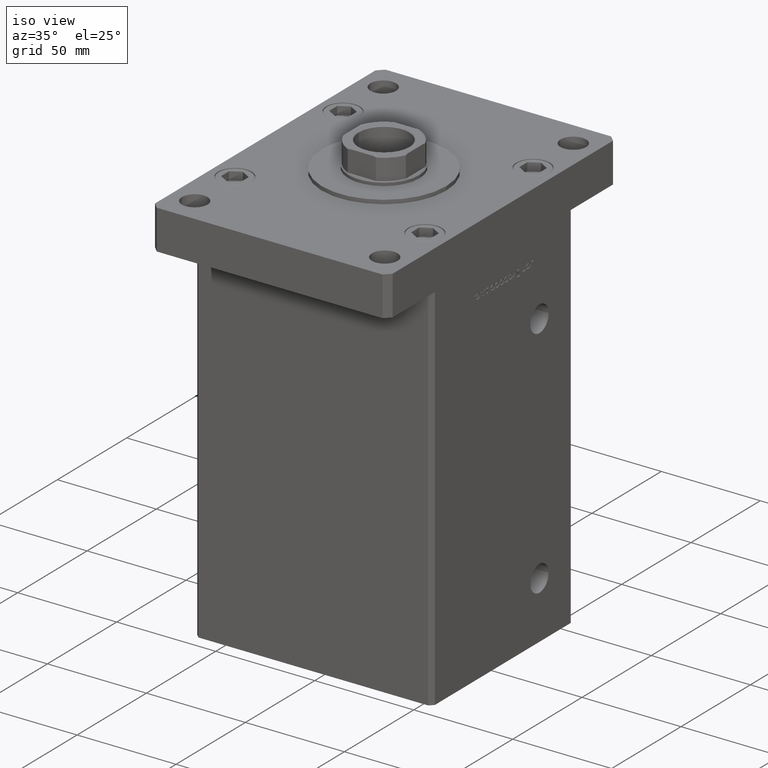
[diagram: clean part render]
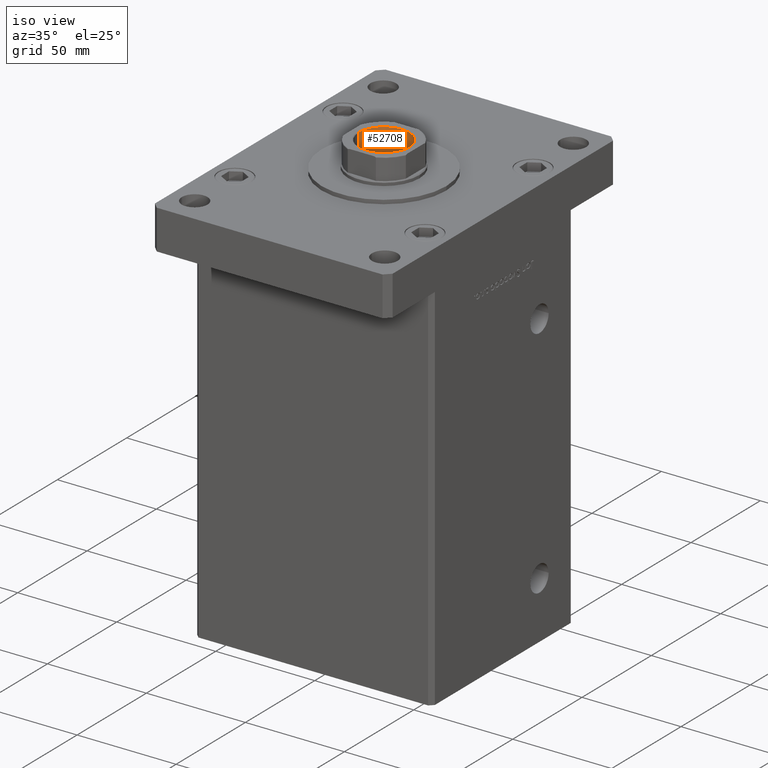
[diagram: same view with one face highlighted and labeled with its STEP entity id]
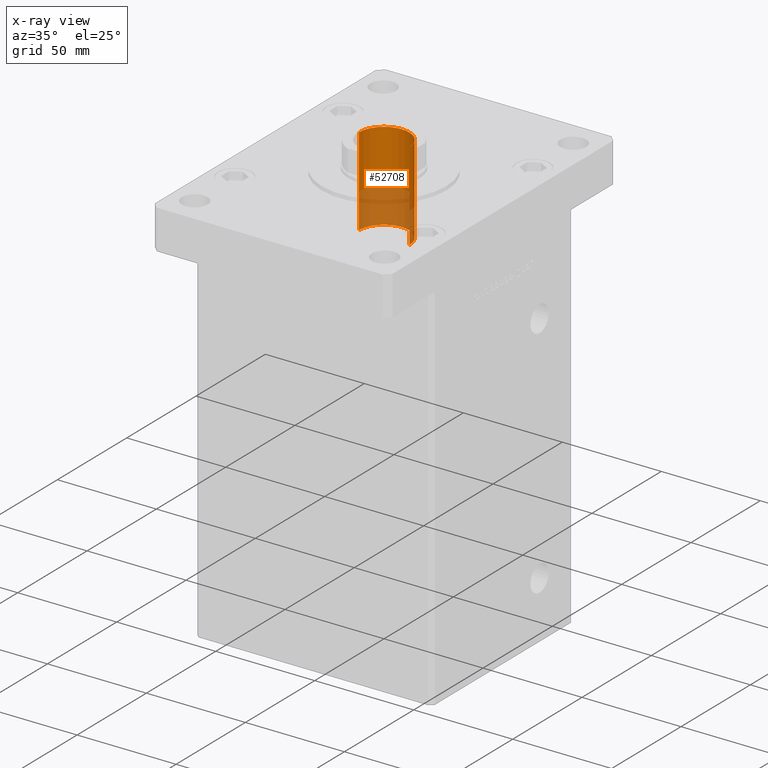
[diagram: x-ray of the same camera — body ghosted, the highlighted face saturated]
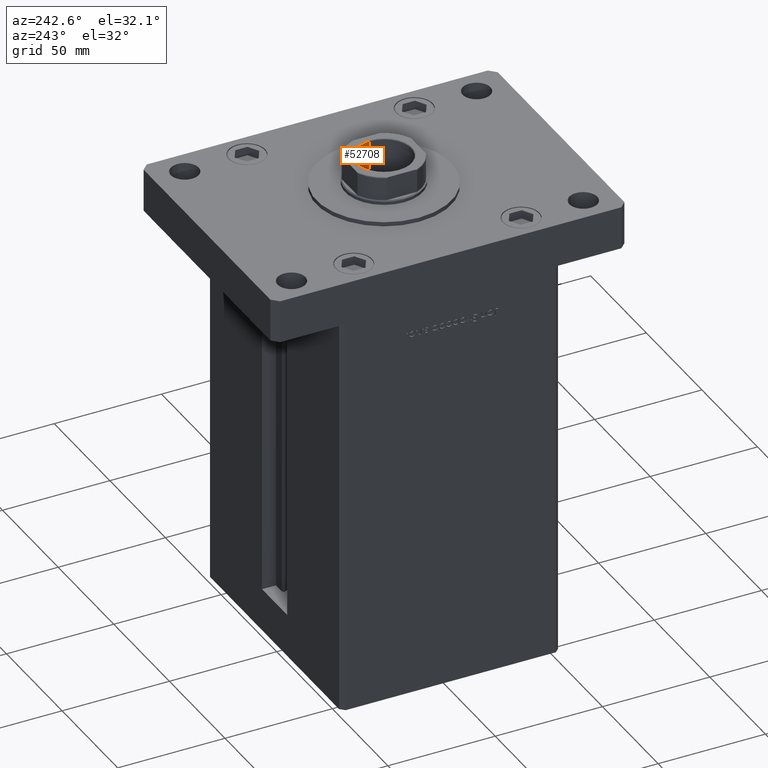
[diagram: same view with one face highlighted and labeled with its STEP entity id]
A machine part, iso view. The second image highlights one B-rep face of the part: STEP entity #52708.
The next image is the same camera in x-ray: the body ghosted, the highlighted face saturated — about 39% of this face is hidden behind the body in this view.
A second angle (auxiliary view) of the same face is appended — the face is thin or edge-on in the first view.
In plain terms, the highlighted cylindrical surface (edge-blend (fillet) strip) has radius 12.75 mm, axis along (0, 0, 1).
Its self-contained STEP definition (entity closure, byte-faithful):
#1361 = VERTEX_POINT ( 'NONE', #44269 ) ;
#2993 = DIRECTION ( 'NONE',  ( 1.000000000000000000, 0.000000000000000000, 0.000000000000000000 ) ) ;
#3491 = EDGE_CURVE ( 'NONE', #53293, #1361, #21608, .T. ) ;
#3869 = ORIENTED_EDGE ( 'NONE', *, *, #45412, .F. ) ;
#6252 = CARTESIAN_POINT ( 'NONE',  ( 0.000000000000000000, 0.000000000000000000, 189.2500000000000000 ) ) ;
#11098 = CARTESIAN_POINT ( 'NONE',  ( 0.000000000000000000, 0.000000000000000000, 188.9499999999999886 ) ) ;
#11414 = DIRECTION ( 'NONE',  ( -0.000000000000000000, -0.000000000000000000, 1.000000000000000000 ) ) ;
#12168 = DIRECTION ( 'NONE',  ( 0.000000000000000000, 0.000000000000000000, 1.000000000000000000 ) ) ;
#12760 = EDGE_LOOP ( 'NONE', ( #33107, #3869, #15554, #51805 ) ) ;
#15554 = ORIENTED_EDGE ( 'NONE', *, *, #46760, .T. ) ;
#17333 = DIRECTION ( 'NONE',  ( -0.000000000000000000, -0.000000000000000000, 1.000000000000000000 ) ) ;
#19863 = VECTOR ( 'NONE', #29760, 1000.000000000000000 ) ;
#21608 = LINE ( 'NONE', #38206, #19863 ) ;
#22680 = CARTESIAN_POINT ( 'NONE',  ( 12.74999999999999112, 0.000000000000000000, 144.2500000000000000 ) ) ;
#24894 = AXIS2_PLACEMENT_3D ( 'NONE', #6252, #44368, #2993 ) ;
#25903 = VERTEX_POINT ( 'NONE', #44282 ) ;
#26959 = CYLINDRICAL_SURFACE ( 'NONE', #24894, 12.74999999999999467 ) ;
#29713 = CIRCLE ( 'NONE', #48838, 12.74999999999999467 ) ;
#29760 = DIRECTION ( 'NONE',  ( -0.000000000000000000, -0.000000000000000000, 1.000000000000000000 ) ) ;
#33107 = ORIENTED_EDGE ( 'NONE', *, *, #3491, .F. ) ;
#33350 = VERTEX_POINT ( 'NONE', #22680 ) ;
#34207 = LINE ( 'NONE', #50533, #36869 ) ;
#35129 = FACE_OUTER_BOUND ( 'NONE', #12760, .T. ) ;
#36494 = EDGE_CURVE ( 'NONE', #25903, #1361, #29713, .T. ) ;
#36869 = VECTOR ( 'NONE', #17333, 1000.000000000000000 ) ;
#38206 = CARTESIAN_POINT ( 'NONE',  ( -12.74999999999999467, 1.561424668912874519E-15, 189.2500000000000000 ) ) ;
#41623 = CARTESIAN_POINT ( 'NONE',  ( 0.000000000000000000, 0.000000000000000000, 144.2500000000000000 ) ) ;
#42022 = AXIS2_PLACEMENT_3D ( 'NONE', #41623, #11414, #48991 ) ;
#43767 = CIRCLE ( 'NONE', #42022, 12.74999999999999112 ) ;
#44269 = CARTESIAN_POINT ( 'NONE',  ( -12.74999999999999467, 1.561424668912874519E-15, 188.9499999999999886 ) ) ;
#44282 = CARTESIAN_POINT ( 'NONE',  ( 12.74999999999999467, 0.000000000000000000, 188.9499999999999886 ) ) ;
#44368 = DIRECTION ( 'NONE',  ( -0.000000000000000000, -0.000000000000000000, 1.000000000000000000 ) ) ;
#45036 = CARTESIAN_POINT ( 'NONE',  ( -12.74999999999999112, 1.561424668912874125E-15, 144.2500000000000000 ) ) ;
#45119 = DIRECTION ( 'NONE',  ( 1.000000000000000000, 0.000000000000000000, 0.000000000000000000 ) ) ;
#45412 = EDGE_CURVE ( 'NONE', #33350, #53293, #43767, .T. ) ;
#46760 = EDGE_CURVE ( 'NONE', #33350, #25903, #34207, .T. ) ;
#48838 = AXIS2_PLACEMENT_3D ( 'NONE', #11098, #12168, #45119 ) ;
#48991 = DIRECTION ( 'NONE',  ( 1.000000000000000000, 0.000000000000000000, 0.000000000000000000 ) ) ;
#50533 = CARTESIAN_POINT ( 'NONE',  ( 12.74999999999999467, 0.000000000000000000, 189.2500000000000000 ) ) ;
#51805 = ORIENTED_EDGE ( 'NONE', *, *, #36494, .T. ) ;
#52708 = ADVANCED_FACE ( 'NONE', ( #35129 ), #26959, .F. ) ;
#53293 = VERTEX_POINT ( 'NONE', #45036 ) ;